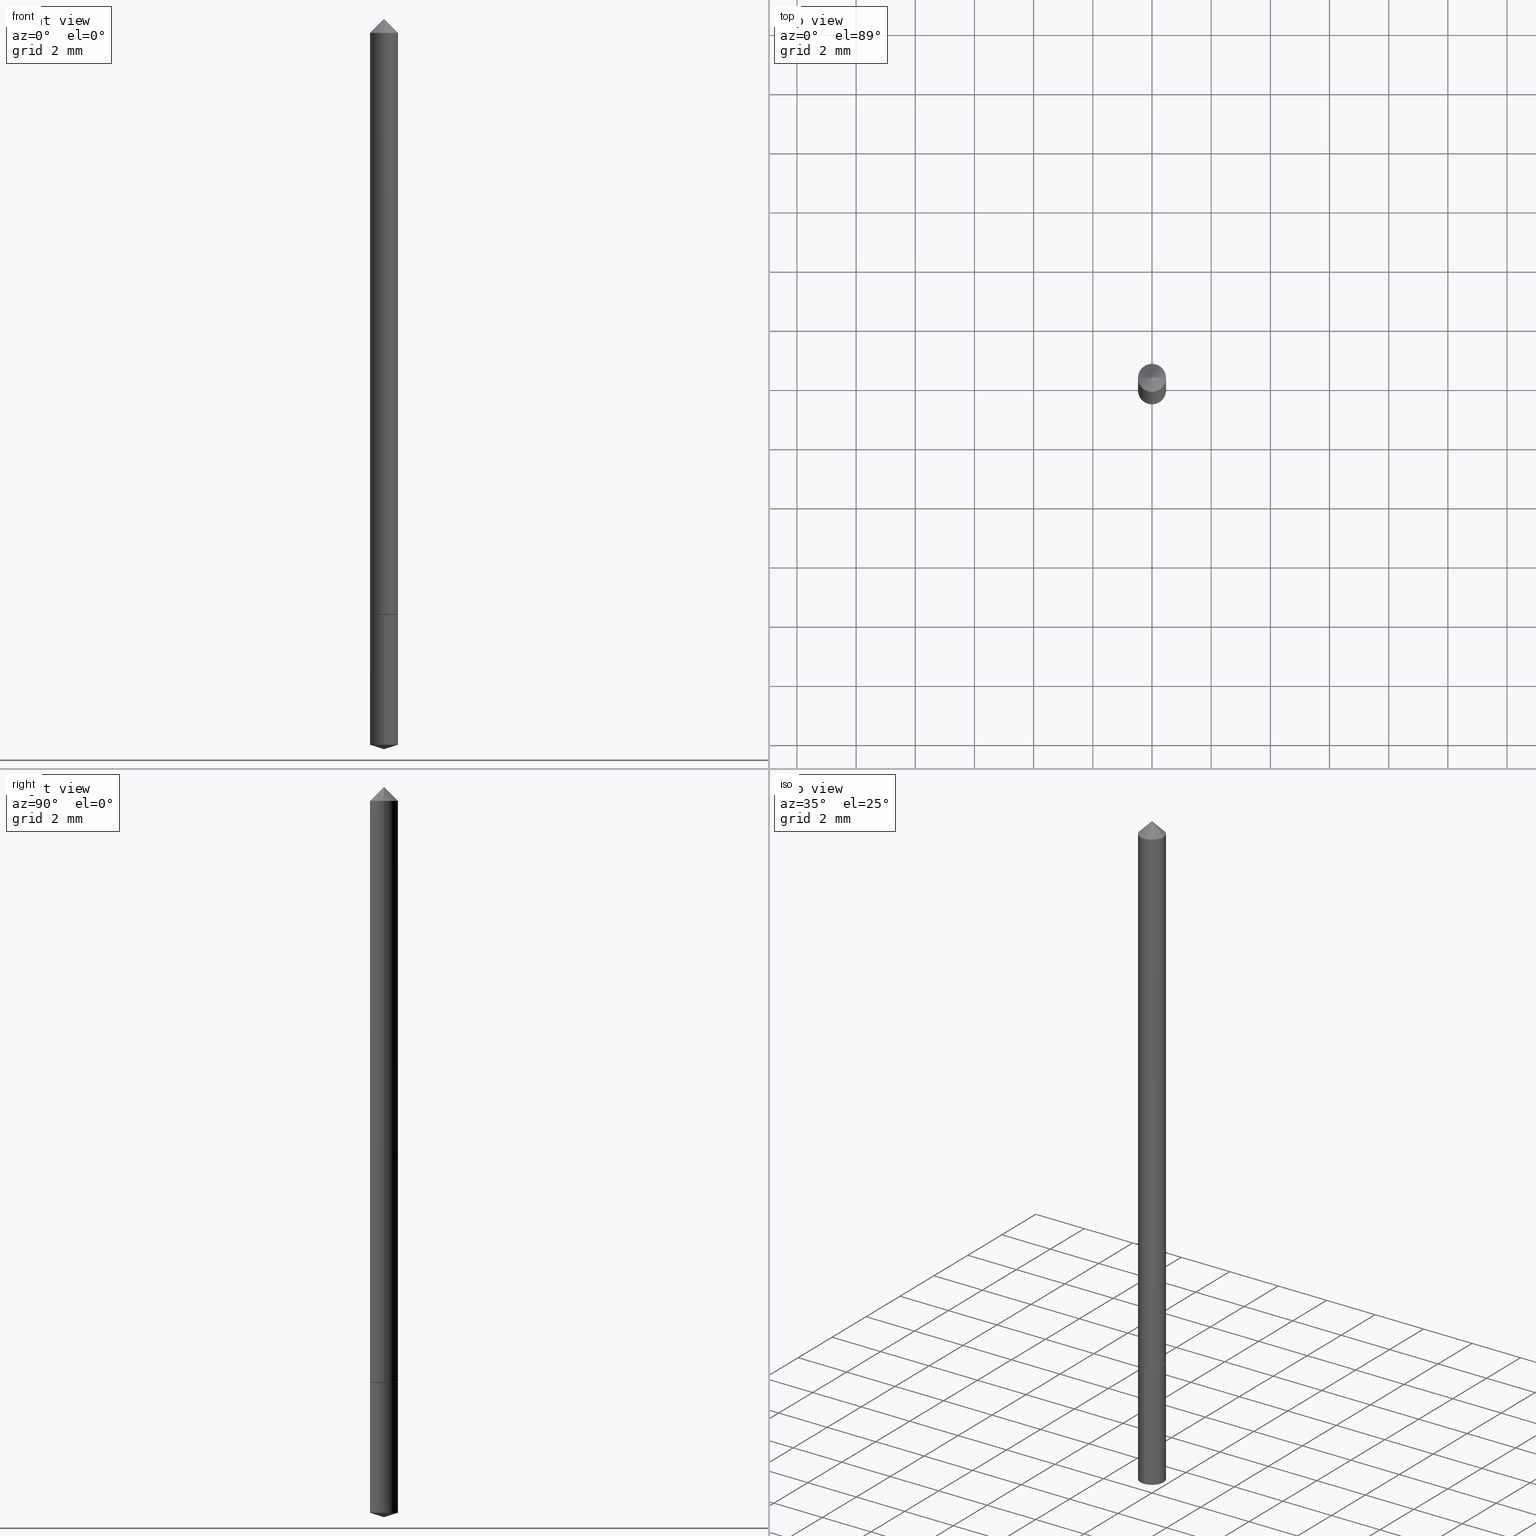
[diagram: canonical four-view strip — front | top / right | iso, engineering-drawing reading convention]
A machine part, canonical four-view strip (front | top / right | iso — engineering-drawing reading convention). The complete STEP part file that produces these views, byte-faithful:
ISO-10303-21;
HEADER;
FILE_DESCRIPTION (( 'STEP AP203' ),
    '1' );
FILE_NAME ('68652.STEP',
    '2024-04-23T13:24:04',
    ( '' ),
    ( '' ),
    'SwSTEP 2.0',
    'SolidWorks 2023',
    '' );
FILE_SCHEMA (( 'CONFIG_CONTROL_DESIGN' ));
ENDSEC;

DATA;
#1 = SHAPE_DEFINITION_REPRESENTATION ( #58, #170 ) ;
#2 = APPROVAL_DATE_TIME ( #256, #321 ) ;
#3 =( GEOMETRIC_REPRESENTATION_CONTEXT ( 3 ) GLOBAL_UNCERTAINTY_ASSIGNED_CONTEXT ( ( #249 ) ) GLOBAL_UNIT_ASSIGNED_CONTEXT ( ( #341, #191, #346 ) ) REPRESENTATION_CONTEXT ( 'NONE', 'WORKASPACE' ) );
#4 = DATE_AND_TIME ( #265, #221 ) ;
#5 = DIRECTION ( 'NONE',  ( -6.982962677686265922E-15, -1.000000000000000000, 0.000000000000000000 ) ) ;
#6 = DIRECTION ( 'NONE',  ( 0.7071067811865453523, -7.319954787623248157E-15, -0.7071067811865496822 ) ) ;
#7 = ORIENTED_EDGE ( 'NONE', *, *, #229, .F. ) ;
#8 = CONICAL_SURFACE ( 'NONE', #204, 0.01870000000000009849, 0.7853981633972797471 ) ;
#9 = VERTEX_POINT ( 'NONE', #149 ) ;
#10 = PLANE ( 'NONE',  #97 ) ;
#11 = APPROVAL_STATUS ( 'not_yet_approved' ) ;
#12 = EDGE_LOOP ( 'NONE', ( #283, #273, #198, #108 ) ) ;
#13 = CARTESIAN_POINT ( 'NONE',  ( 0.000000000000000000, 0.000000000000000000, 0.000000000000000000 ) ) ;
#14 = ADVANCED_FACE ( 'NONE', ( #308 ), #147, .T. ) ;
#15 = CARTESIAN_POINT ( 'NONE',  ( -9.387324683485134732E-28, 1.340203340641884344E-13, 38.38577874015747682 ) ) ;
#16 = CLOSED_SHELL ( 'NONE', ( #120, #81, #14, #67, #45, #113, #26 ) ) ;
#17 = ORIENTED_EDGE ( 'NONE', *, *, #246, .F. ) ;
#18 = CYLINDRICAL_SURFACE ( 'NONE', #29, 0.01870000000000005339 ) ;
#19 = CC_DESIGN_DATE_AND_TIME_ASSIGNMENT ( #197, #278, ( #223 ) ) ;
#20 = VERTEX_POINT ( 'NONE', #288 ) ;
#21 = CARTESIAN_POINT ( 'NONE',  ( 0.01870000000000009849, -2.940176435439812668E-15, -0.8046999999999998598 ) ) ;
#22 = DIRECTION ( 'NONE',  ( 2.445468806185136597E-29, -3.491481338843145583E-15, -1.000000000000000000 ) ) ;
#23 = AXIS2_PLACEMENT_3D ( 'NONE', #130, #95, #213 ) ;
#24 = PERSON_AND_ORGANIZATION_ROLE ( 'creator' ) ;
#25 = ORIENTED_EDGE ( 'NONE', *, *, #74, .F. ) ;
#26 = ADVANCED_FACE ( 'NONE', ( #28 ), #177, .T. ) ;
#27 = PRODUCT ( '68652', '68652', '', ( #212 ) ) ;
#28 = FACE_OUTER_BOUND ( 'NONE', #218, .T. ) ;
#29 = AXIS2_PLACEMENT_3D ( 'NONE', #140, #136, #323 ) ;
#30 = CC_DESIGN_PERSON_AND_ORGANIZATION_ASSIGNMENT ( #200, #106, ( #223 ) ) ;
#31 = PERSON_AND_ORGANIZATION ( #347, #276 ) ;
#32 = CARTESIAN_POINT ( 'NONE',  ( 7.642090019328600035E-31, -1.091087918388489897E-16, -0.03125000000000020123 ) ) ;
#33 = APPROVAL_STATUS ( 'not_yet_approved' ) ;
#34 = CARTESIAN_POINT ( 'NONE',  ( 2.407126466255076408E-29, -3.436592345300626676E-15, -0.9842999999999999527 ) ) ;
#35 = LOCAL_TIME ( 9, 24, 4.000000000000000000, #141 ) ;
#36 = CARTESIAN_POINT ( 'NONE',  ( -0.01870000000000005339, 1.328714915871391141E-16, -9.198408618776699725E-31 ) ) ;
#37 = FACE_OUTER_BOUND ( 'NONE', #355, .T. ) ;
#38 = DIRECTION ( 'NONE',  ( -2.445520407975564975E-29, 3.491407442142260390E-15, 1.000000000000000000 ) ) ;
#39 = CC_DESIGN_APPROVAL ( #236, ( #223 ) ) ;
#40 = EDGE_CURVE ( 'NONE', #363, #313, #124, .T. ) ;
#41 = LINE ( 'NONE', #168, #232 ) ;
#42 = DIRECTION ( 'NONE',  ( 1.000000000000000000, -6.982962677686265133E-15, 0.000000000000000000 ) ) ;
#43 = ORIENTED_EDGE ( 'NONE', *, *, #90, .T. ) ;
#44 = DIRECTION ( 'NONE',  ( 2.445468806185136597E-29, -3.491481338843145583E-15, -1.000000000000000000 ) ) ;
#45 = ADVANCED_FACE ( 'NONE', ( #299 ), #8, .T. ) ;
#46 = CIRCLE ( 'NONE', #220, 0.01870000000000000134 ) ;
#47 = APPROVAL_ROLE ( '' ) ;
#48 = LOCAL_TIME ( 9, 24, 4.000000000000000000, #56 ) ;
#49 = ORIENTED_EDGE ( 'NONE', *, *, #125, .F. ) ;
#50 = DIRECTION ( 'NONE',  ( -6.982962677686265922E-15, -1.000000000000000000, 3.500519750498601486E-15 ) ) ;
#51 = ORIENTED_EDGE ( 'NONE', *, *, #55, .F. ) ;
#52 = DATE_AND_TIME ( #262, #64 ) ;
#53 = ORIENTED_EDGE ( 'NONE', *, *, #125, .T. ) ;
#54 = AXIS2_PLACEMENT_3D ( 'NONE', #258, #228, #176 ) ;
#55 = EDGE_CURVE ( 'NONE', #9, #363, #315, .T. ) ;
#56 = COORDINATED_UNIVERSAL_TIME_OFFSET ( 5, 0, .BEHIND. ) ;
#57 = VERTEX_POINT ( 'NONE', #127 ) ;
#58 = PRODUCT_DEFINITION_SHAPE ( 'NONE', 'NONE',  #223 ) ;
#59 = COORDINATED_UNIVERSAL_TIME_OFFSET ( 5, 0, .BEHIND. ) ;
#60 = DESIGN_CONTEXT ( 'detailed design', #342, 'design' ) ;
#61 = APPROVAL ( #115, 'UNSPECIFIED' ) ;
#62 = CIRCLE ( 'NONE', #364, 0.01870000000000000481 ) ;
#63 = DIRECTION ( 'NONE',  ( 1.000000000000000000, -6.982962677686264344E-15, 0.000000000000000000 ) ) ;
#64 = LOCAL_TIME ( 9, 24, 4.000000000000000000, #59 ) ;
#65 = PERSON_AND_ORGANIZATION ( #347, #276 ) ;
#66 = DIRECTION ( 'NONE',  ( -6.982962677686265922E-15, -1.000000000000000000, 0.000000000000000000 ) ) ;
#67 = ADVANCED_FACE ( 'NONE', ( #37 ), #189, .F. ) ;
#68 = AXIS2_PLACEMENT_3D ( 'NONE', #192, #242, #63 ) ;
#69 = CIRCLE ( 'NONE', #23, 0.01870000000000009849 ) ;
#70 = CARTESIAN_POINT ( 'NONE',  ( 1.328714915871626320E-16, 0.01869999999999657700, -0.9784039126479632253 ) ) ;
#71 = DIRECTION ( 'NONE',  ( -1.000000000000000000, 6.982962677686266711E-15, 0.000000000000000000 ) ) ;
#72 = LINE ( 'NONE', #193, #343 ) ;
#73 = DIRECTION ( 'NONE',  ( -2.445520407975564975E-29, 3.491407442142260390E-15, 1.000000000000000000 ) ) ;
#74 = EDGE_CURVE ( 'NONE', #20, #251, #210, .T. ) ;
#75 = CARTESIAN_POINT ( 'NONE',  ( 0.000000000000000000, 0.000000000000000000, 0.000000000000000000 ) ) ;
#76 = DIRECTION ( 'NONE',  ( -6.982962677686265922E-15, -1.000000000000000000, 0.000000000000000000 ) ) ;
#77 = AXIS2_PLACEMENT_3D ( 'NONE', #202, #73, #248 ) ;
#78 = ORIENTED_EDGE ( 'NONE', *, *, #101, .T. ) ;
#79 = LINE ( 'NONE', #354, #183 ) ;
#80 = ADVANCED_FACE ( 'NONE', ( #82 ), #84, .T. ) ;
#81 = ADVANCED_FACE ( 'NONE', ( #250 ), #217, .T. ) ;
#82 = FACE_OUTER_BOUND ( 'NONE', #167, .T. ) ;
#83 = DIRECTION ( 'NONE',  ( 1.000000000000000000, -6.982962677686264344E-15, 0.000000000000000000 ) ) ;
#84 = CONICAL_SURFACE ( 'NONE', #337, 124.8659371009187424, 1.265363707695900120 ) ;
#85 = ORIENTED_EDGE ( 'NONE', *, *, #117, .T. ) ;
#86 = ORIENTED_EDGE ( 'NONE', *, *, #190, .T. ) ;
#87 = EDGE_LOOP ( 'NONE', ( #225, #338, #207 ) ) ;
#88 = VERTEX_POINT ( 'NONE', #174 ) ;
#89 = ORIENTED_EDGE ( 'NONE', *, *, #74, .T. ) ;
#90 = EDGE_CURVE ( 'NONE', #363, #88, #79, .T. ) ;
#91 = CARTESIAN_POINT ( 'NONE',  ( 2.392665185862083405E-29, -3.416066203663757391E-15, -0.9784039126479632253 ) ) ;
#92 = AXIS2_PLACEMENT_3D ( 'NONE', #310, #22, #71 ) ;
#93 = APPLICATION_PROTOCOL_DEFINITION ( 'international standard', 'config_control_design', 1994, #359 ) ;
#94 = DIMENSIONAL_EXPONENTS ( 1.000000000000000000, 0.000000000000000000, 0.000000000000000000, 0.000000000000000000, 0.000000000000000000, 0.000000000000000000, 0.000000000000000000 ) ;
#95 = DIRECTION ( 'NONE',  ( -2.445468806185136597E-29, 3.491481338843145583E-15, 1.000000000000000000 ) ) ;
#96 = LENGTH_MEASURE_WITH_UNIT ( LENGTH_MEASURE( 0.02539999999999999897 ), #157 );
#97 = AXIS2_PLACEMENT_3D ( 'NONE', #134, #199, #245 ) ;
#98 = CC_DESIGN_APPROVAL ( #61, ( #254 ) ) ;
#99 = DIRECTION ( 'NONE',  ( 1.000000000000000000, -6.982962677686266711E-15, 0.000000000000000000 ) ) ;
#100 = CARTESIAN_POINT ( 'NONE',  ( 1.969091482740271834E-29, -2.811340774036500182E-15, -0.8051999999999999158 ) ) ;
#101 = EDGE_CURVE ( 'NONE', #306, #206, #222, .T. ) ;
#102 = CYLINDRICAL_SURFACE ( 'NONE', #132, 0.01870000000000000134 ) ;
#103 = CARTESIAN_POINT ( 'NONE',  ( 1.969091482740271834E-29, -2.811340774036500182E-15, -0.8051999999999999158 ) ) ;
#104 = CARTESIAN_POINT ( 'NONE',  ( -0.01870000000000000481, -1.326480421015823222E-15, -0.03125000000000020123 ) ) ;
#105 = AXIS2_PLACEMENT_3D ( 'NONE', #100, #195, #83 ) ;
#106 = PERSON_AND_ORGANIZATION_ROLE ( 'creator' ) ;
#107 = DIRECTION ( 'NONE',  ( -0.7071067811865453523, 2.468850131082234184E-15, -0.7071067811865496822 ) ) ;
#108 = ORIENTED_EDGE ( 'NONE', *, *, #117, .F. ) ;
#109 = CARTESIAN_POINT ( 'NONE',  ( 7.642090019328600035E-31, -1.091087918388489897E-16, -0.03125000000000020123 ) ) ;
#110 = EDGE_LOOP ( 'NONE', ( #53, #233 ) ) ;
#111 = CONICAL_SURFACE ( 'NONE', #155, 0.01870000000000000481, 0.7853981633974452814 ) ;
#112 = ORIENTED_EDGE ( 'NONE', *, *, #309, .F. ) ;
#113 = ADVANCED_FACE ( 'NONE', ( #349 ), #18, .T. ) ;
#114 = ORIENTED_EDGE ( 'NONE', *, *, #246, .T. ) ;
#115 = APPROVAL_STATUS ( 'not_yet_approved' ) ;
#116 = VERTEX_POINT ( 'NONE', #21 ) ;
#117 = EDGE_CURVE ( 'NONE', #206, #267, #188, .T. ) ;
#118 = DIRECTION ( 'NONE',  ( -2.445520407975564975E-29, 3.491407442142260390E-15, 1.000000000000000000 ) ) ;
#119 = PERSON_AND_ORGANIZATION ( #347, #276 ) ;
#120 = ADVANCED_FACE ( 'NONE', ( #350 ), #111, .T. ) ;
#121 = PERSON_AND_ORGANIZATION ( #347, #276 ) ;
#122 = LINE ( 'NONE', #235, #173 ) ;
#123 = CARTESIAN_POINT ( 'NONE',  ( 0.01870000000000000481, -2.374001043971766580E-16, -0.03125000000000020123 ) ) ;
#124 = CIRCLE ( 'NONE', #165, 0.01870000000000000134 ) ;
#125 = EDGE_CURVE ( 'NONE', #335, #88, #46, .T. ) ;
#126 = APPROVAL_DATE_TIME ( #4, #236 ) ;
#127 = CARTESIAN_POINT ( 'NONE',  ( -0.01870000000000009849, -2.676723541779939195E-15, -0.8046999999999998598 ) ) ;
#128 = APPLICATION_PROTOCOL_DEFINITION ( 'international standard', 'config_control_design', 1994, #342 ) ;
#129 = DIRECTION ( 'NONE',  ( -2.438088387897960049E-29, 3.491481338843145188E-15, 1.000000000000000000 ) ) ;
#130 = CARTESIAN_POINT ( 'NONE',  ( 1.967868748337179033E-29, -2.809595033367079073E-15, -0.8046999999999998598 ) ) ;
#131 = DIRECTION ( 'NONE',  ( -2.445520407975564975E-29, 3.491407442142260390E-15, 1.000000000000000000 ) ) ;
#132 = AXIS2_PLACEMENT_3D ( 'NONE', #162, #133, #66 ) ;
#133 = DIRECTION ( 'NONE',  ( -2.445520407975564975E-29, 3.491407442142260390E-15, 1.000000000000000000 ) ) ;
#134 = CARTESIAN_POINT ( 'NONE',  ( 1.969091482740271834E-29, -2.811340774036500182E-15, -0.8051999999999999158 ) ) ;
#135 = CARTESIAN_POINT ( 'NONE',  ( 1.967868748337179033E-29, -2.809595033367079073E-15, -0.8046999999999998598 ) ) ;
#136 = DIRECTION ( 'NONE',  ( -2.445468806185136597E-29, 3.491481338843145583E-15, 1.000000000000000000 ) ) ;
#137 = VECTOR ( 'NONE', #209, 39.37007874015748854 ) ;
#138 = EDGE_CURVE ( 'NONE', #251, #20, #253, .T. ) ;
#139 = EDGE_LOOP ( 'NONE', ( #304, #43, #49, #17 ) ) ;
#140 = CARTESIAN_POINT ( 'NONE',  ( 0.000000000000000000, 0.000000000000000000, 0.000000000000000000 ) ) ;
#141 = COORDINATED_UNIVERSAL_TIME_OFFSET ( 5, 0, .BEHIND. ) ;
#142 = ORIENTED_EDGE ( 'NONE', *, *, #309, .T. ) ;
#143 = DIRECTION ( 'NONE',  ( -1.000000000000000000, 6.982962677686266711E-15, 0.000000000000000000 ) ) ;
#144 = CALENDAR_DATE ( 2024, 23, 4 ) ;
#145 = ORIENTED_EDGE ( 'NONE', *, *, #184, .F. ) ;
#146 = EDGE_CURVE ( 'NONE', #313, #363, #226, .T. ) ;
#147 = CONICAL_SURFACE ( 'NONE', #54, 0.01870000000000009849, 0.7853981633972797471 ) ;
#148 = AXIS2_PLACEMENT_3D ( 'NONE', #75, #239, #339 ) ;
#149 = CARTESIAN_POINT ( 'NONE',  ( 2.407125737570348371E-29, -3.436592345300626676E-15, -0.9842999999999999527 ) ) ;
#150 = PERSON_AND_ORGANIZATION_ROLE ( 'design_supplier' ) ;
#151 = ORIENTED_EDGE ( 'NONE', *, *, #277, .T. ) ;
#152 = ORIENTED_EDGE ( 'NONE', *, *, #290, .T. ) ;
#153 = ADVANCED_FACE ( 'NONE', ( #272 ), #301, .T. ) ;
#154 = CALENDAR_DATE ( 2024, 23, 4 ) ;
#155 = AXIS2_PLACEMENT_3D ( 'NONE', #109, #44, #143 ) ;
#156 = PERSON_AND_ORGANIZATION_ROLE ( 'classification_officer' ) ;
#157 =( LENGTH_UNIT ( ) NAMED_UNIT ( * ) SI_UNIT ( $, .METRE. ) );
#158 = COORDINATED_UNIVERSAL_TIME_OFFSET ( 5, 0, .BEHIND. ) ;
#159 = VECTOR ( 'NONE', #6, 39.37007874015748143 ) ;
#160 = DIRECTION ( 'NONE',  ( 1.000000000000000000, -6.982962677686265133E-15, 0.000000000000000000 ) ) ;
#161 = CC_DESIGN_PERSON_AND_ORGANIZATION_ASSIGNMENT ( #31, #24, ( #332 ) ) ;
#162 = CARTESIAN_POINT ( 'NONE',  ( 1.969091482740271834E-29, -2.811340774036500182E-15, -0.8051999999999999158 ) ) ;
#163 = DIRECTION ( 'NONE',  ( 1.000000000000000000, -6.982962677686265922E-15, 4.876176775795935793E-29 ) ) ;
#164 = DIRECTION ( 'NONE',  ( -2.445520407975564975E-29, 3.491407442142260390E-15, 1.000000000000000000 ) ) ;
#165 = AXIS2_PLACEMENT_3D ( 'NONE', #91, #131, #5 ) ;
#166 = APPROVAL_PERSON_ORGANIZATION ( #282, #61, #292 ) ;
#167 = EDGE_LOOP ( 'NONE', ( #51, #356, #358 ) ) ;
#168 = CARTESIAN_POINT ( 'NONE',  ( 0.01870000000000009849, -2.940176435439812668E-15, -0.8046999999999998598 ) ) ;
#169 = CARTESIAN_POINT ( 'NONE',  ( -0.01870000000000000481, 2.147261023388422272E-17, -0.03125000000000020123 ) ) ;
#170 = ADVANCED_BREP_SHAPE_REPRESENTATION ( '68652', ( #348, #234, #148 ), #3 ) ;
#171 = ADVANCED_FACE ( 'NONE', ( #247 ), #316, .T. ) ;
#172 = DIRECTION ( 'NONE',  ( -2.445468806185136597E-29, 3.491481338843145583E-15, 1.000000000000000000 ) ) ;
#173 = VECTOR ( 'NONE', #118, 39.37007874015748143 ) ;
#174 = CARTESIAN_POINT ( 'NONE',  ( 1.328714915871626813E-16, 0.01869999999999719109, -0.8051999999999999158 ) ) ;
#175 = COORDINATED_UNIVERSAL_TIME_OFFSET ( 5, 0, .BEHIND. ) ;
#176 = DIRECTION ( 'NONE',  ( 1.000000000000000000, -6.982962677686265133E-15, 0.000000000000000000 ) ) ;
#177 = CONICAL_SURFACE ( 'NONE', #92, 0.01870000000000000481, 0.7853981633974452814 ) ;
#178 = APPROVAL_PERSON_ORGANIZATION ( #294, #236, #241 ) ;
#179 = ORIENTED_EDGE ( 'NONE', *, *, #190, .F. ) ;
#180 = ORIENTED_EDGE ( 'NONE', *, *, #291, .F. ) ;
#181 = ADVANCED_FACE ( 'NONE', ( #269 ), #10, .F. ) ;
#182 = LINE ( 'NONE', #36, #238 ) ;
#183 = VECTOR ( 'NONE', #279, 39.37007874015748143 ) ;
#184 = EDGE_CURVE ( 'NONE', #88, #335, #275, .T. ) ;
#185 = CARTESIAN_POINT ( 'NONE',  ( -0.01870000000000009849, -2.676723541779939195E-15, -0.8046999999999998598 ) ) ;
#186 = PERSON_AND_ORGANIZATION_ROLE ( 'design_owner' ) ;
#187 = DIRECTION ( 'NONE',  ( -2.445468806185136597E-29, 3.491481338843145583E-15, 1.000000000000000000 ) ) ;
#188 = CIRCLE ( 'NONE', #259, 0.01870000000000000481 ) ;
#189 = PLANE ( 'NONE',  #326 ) ;
#190 = EDGE_CURVE ( 'NONE', #251, #116, #41, .T. ) ;
#191 =( NAMED_UNIT ( * ) PLANE_ANGLE_UNIT ( ) SI_UNIT ( $, .RADIAN. ) );
#192 = CARTESIAN_POINT ( 'NONE',  ( 1.969091482740271834E-29, -2.811340774036500182E-15, -0.8051999999999999158 ) ) ;
#193 = CARTESIAN_POINT ( 'NONE',  ( 2.407042638047042269E-29, -3.436711348547731864E-15, -0.9842999999999999527 ) ) ;
#194 = DIRECTION ( 'NONE',  ( -6.659769872151647866E-15, -0.9537169507482290420, 0.3007057995042657361 ) ) ;
#195 = DIRECTION ( 'NONE',  ( -2.445468806185136597E-29, 3.491481338843145583E-15, 1.000000000000000000 ) ) ;
#196 = AXIS2_PLACEMENT_3D ( 'NONE', #135, #303, #42 ) ;
#197 = DATE_AND_TIME ( #144, #286 ) ;
#198 = ORIENTED_EDGE ( 'NONE', *, *, #317, .T. ) ;
#199 = DIRECTION ( 'NONE',  ( 2.445520407975564695E-29, -3.491407442142260390E-15, -1.000000000000000000 ) ) ;
#200 = PERSON_AND_ORGANIZATION ( #347, #276 ) ;
#201 = CARTESIAN_POINT ( 'NONE',  ( 7.642090019328600035E-31, -1.091087918388489897E-16, -0.03125000000000020123 ) ) ;
#202 = CARTESIAN_POINT ( 'NONE',  ( 2.392665185862083405E-29, -3.416066203663757391E-15, -0.9784039126479632253 ) ) ;
#203 = CC_DESIGN_PERSON_AND_ORGANIZATION_ASSIGNMENT ( #119, #156, ( #254 ) ) ;
#204 = AXIS2_PLACEMENT_3D ( 'NONE', #318, #187, #160 ) ;
#205 = ORIENTED_EDGE ( 'NONE', *, *, #138, .T. ) ;
#206 = VERTEX_POINT ( 'NONE', #104 ) ;
#207 = ORIENTED_EDGE ( 'NONE', *, *, #146, .F. ) ;
#208 = EDGE_LOOP ( 'NONE', ( #330, #281, #114, #145 ) ) ;
#209 = DIRECTION ( 'NONE',  ( 6.776566513254275492E-15, 0.9537169507482312625, 0.3007057995042591303 ) ) ;
#210 = CIRCLE ( 'NONE', #68, 0.01820000000000023335 ) ;
#211 = LINE ( 'NONE', #185, #320 ) ;
#212 = MECHANICAL_CONTEXT ( 'NONE', #359, 'mechanical' ) ;
#213 = DIRECTION ( 'NONE',  ( 1.000000000000000000, -6.982962677686265133E-15, 0.000000000000000000 ) ) ;
#214 = CIRCLE ( 'NONE', #196, 0.01870000000000009849 ) ;
#215 = CARTESIAN_POINT ( 'NONE',  ( 0.01870000000000005339, -1.305814020727335452E-16, 9.118450570738424932E-31 ) ) ;
#216 = ORIENTED_EDGE ( 'NONE', *, *, #138, .F. ) ;
#217 = CYLINDRICAL_SURFACE ( 'NONE', #285, 0.01870000000000005339 ) ;
#218 = EDGE_LOOP ( 'NONE', ( #180, #78, #85 ) ) ;
#219 = CARTESIAN_POINT ( 'NONE',  ( 1.969091482740271834E-29, -2.811340774036500182E-15, -0.8051999999999999158 ) ) ;
#220 = AXIS2_PLACEMENT_3D ( 'NONE', #345, #224, #329 ) ;
#221 = LOCAL_TIME ( 9, 24, 4.000000000000000000, #158 ) ;
#222 = LINE ( 'NONE', #169, #244 ) ;
#223 = PRODUCT_DEFINITION ( 'UNKNOWN', '', #332, #60 ) ;
#224 = DIRECTION ( 'NONE',  ( -2.445520407975564975E-29, 3.491407442142260390E-15, 1.000000000000000000 ) ) ;
#225 = ORIENTED_EDGE ( 'NONE', *, *, #351, .F. ) ;
#226 = CIRCLE ( 'NONE', #77, 0.01870000000000000134 ) ;
#227 = EDGE_LOOP ( 'NONE', ( #257, #89, #86, #7 ) ) ;
#228 = DIRECTION ( 'NONE',  ( -2.445468806185136597E-29, 3.491481338843145583E-15, 1.000000000000000000 ) ) ;
#229 = EDGE_CURVE ( 'NONE', #57, #116, #214, .T. ) ;
#230 = APPROVAL_DATE_TIME ( #52, #61 ) ;
#231 = ORIENTED_EDGE ( 'NONE', *, *, #291, .T. ) ;
#232 = VECTOR ( 'NONE', #271, 39.37007874015748143 ) ;
#233 = ORIENTED_EDGE ( 'NONE', *, *, #184, .T. ) ;
#234 = MANIFOLD_SOLID_BREP ( 'Body-Move/Copy2[2]', #16 ) ;
#235 = CARTESIAN_POINT ( 'NONE',  ( -1.305814020727134786E-16, -0.01870000000000281160, -0.8051999999999999158 ) ) ;
#236 = APPROVAL ( #33, 'UNSPECIFIED' ) ;
#237 = CC_DESIGN_DATE_AND_TIME_ASSIGNMENT ( #362, #255, ( #254 ) ) ;
#238 = VECTOR ( 'NONE', #319, 39.37007874015748143 ) ;
#239 = DIRECTION ( 'NONE',  ( 0.000000000000000000, 0.000000000000000000, 1.000000000000000000 ) ) ;
#240 = FACE_OUTER_BOUND ( 'NONE', #208, .T. ) ;
#241 = APPROVAL_ROLE ( '' ) ;
#242 = DIRECTION ( 'NONE',  ( -2.445468806185136597E-29, 3.491481338843145583E-15, 1.000000000000000000 ) ) ;
#243 = CARTESIAN_POINT ( 'NONE',  ( 3.031804772502854633E-31, -4.435165486374430204E-17, -0.01255000000000007845 ) ) ;
#244 = VECTOR ( 'NONE', #107, 39.37007874015748143 ) ;
#245 = DIRECTION ( 'NONE',  ( 6.982962677686265922E-15, 1.000000000000000000, -3.491407442142260390E-15 ) ) ;
#246 = EDGE_CURVE ( 'NONE', #313, #335, #122, .T. ) ;
#247 = FACE_OUTER_BOUND ( 'NONE', #87, .T. ) ;
#248 = DIRECTION ( 'NONE',  ( -6.982962677686265922E-15, -1.000000000000000000, 0.000000000000000000 ) ) ;
#249 = UNCERTAINTY_MEASURE_WITH_UNIT (LENGTH_MEASURE( 1.000000000000000082E-05 ), #341, 'distance_accuracy_value', 'NONE');
#250 = FACE_OUTER_BOUND ( 'NONE', #311, .T. ) ;
#251 = VERTEX_POINT ( 'NONE', #314 ) ;
#252 = EDGE_LOOP ( 'NONE', ( #336, #231, #142 ) ) ;
#253 = CIRCLE ( 'NONE', #105, 0.01820000000000023335 ) ;
#254 = SECURITY_CLASSIFICATION ( '', '', #360 ) ;
#255 = DATE_TIME_ROLE ( 'classification_date' ) ;
#256 = DATE_AND_TIME ( #280, #35 ) ;
#257 = ORIENTED_EDGE ( 'NONE', *, *, #277, .F. ) ;
#258 = CARTESIAN_POINT ( 'NONE',  ( 1.967868748337179033E-29, -2.809595033367079073E-15, -0.8046999999999998598 ) ) ;
#259 = AXIS2_PLACEMENT_3D ( 'NONE', #201, #305, #307 ) ;
#260 = APPROVAL_PERSON_ORGANIZATION ( #270, #321, #47 ) ;
#261 = CC_DESIGN_PERSON_AND_ORGANIZATION_ASSIGNMENT ( #121, #150, ( #332 ) ) ;
#262 = CALENDAR_DATE ( 2024, 23, 4 ) ;
#263 = AXIS2_PLACEMENT_3D ( 'NONE', #327, #164, #352 ) ;
#264 = CC_DESIGN_SECURITY_CLASSIFICATION ( #254, ( #332 ) ) ;
#265 = CALENDAR_DATE ( 2024, 23, 4 ) ;
#266 = LINE ( 'NONE', #215, #268 ) ;
#267 = VERTEX_POINT ( 'NONE', #293 ) ;
#268 = VECTOR ( 'NONE', #300, 39.37007874015748143 ) ;
#269 = FACE_OUTER_BOUND ( 'NONE', #110, .T. ) ;
#270 = PERSON_AND_ORGANIZATION ( #347, #276 ) ;
#271 = DIRECTION ( 'NONE',  ( 0.7071067811864283348, -2.468850131081008294E-15, 0.7071067811866666997 ) ) ;
#272 = FACE_OUTER_BOUND ( 'NONE', #139, .T. ) ;
#273 = ORIENTED_EDGE ( 'NONE', *, *, #229, .T. ) ;
#274 = DIRECTION ( 'NONE',  ( 1.000000000000000000, -6.982962677686265922E-15, 4.876176775795935232E-29 ) ) ;
#275 = CIRCLE ( 'NONE', #312, 0.01870000000000000134 ) ;
#276 = ORGANIZATION ( 'UNSPECIFIED', 'UNSPECIFIED', '' ) ;
#277 = EDGE_CURVE ( 'NONE', #20, #57, #211, .T. ) ;
#278 = DATE_TIME_ROLE ( 'creation_date' ) ;
#279 = DIRECTION ( 'NONE',  ( -2.445520407975564975E-29, 3.491407442142260390E-15, 1.000000000000000000 ) ) ;
#280 = CALENDAR_DATE ( 2024, 23, 4 ) ;
#281 = ORIENTED_EDGE ( 'NONE', *, *, #40, .T. ) ;
#282 = PERSON_AND_ORGANIZATION ( #347, #276 ) ;
#283 = ORIENTED_EDGE ( 'NONE', *, *, #284, .F. ) ;
#284 = EDGE_CURVE ( 'NONE', #57, #206, #182, .T. ) ;
#285 = AXIS2_PLACEMENT_3D ( 'NONE', #13, #172, #274 ) ;
#286 = LOCAL_TIME ( 9, 24, 4.000000000000000000, #175 ) ;
#287 = EDGE_LOOP ( 'NONE', ( #205, #151, #334, #179 ) ) ;
#288 = CARTESIAN_POINT ( 'NONE',  ( -0.01820000000000023335, -2.679372768954050396E-15, -0.8051999999999999158 ) ) ;
#289 = DIRECTION ( 'NONE',  ( -0.7071067811864283348, 7.493145998869923442E-15, 0.7071067811866666997 ) ) ;
#290 = EDGE_CURVE ( 'NONE', #116, #57, #69, .T. ) ;
#291 = EDGE_CURVE ( 'NONE', #306, #267, #340, .T. ) ;
#292 = APPROVAL_ROLE ( '' ) ;
#293 = CARTESIAN_POINT ( 'NONE',  ( 0.01870000000000000481, -2.396901939115822021E-16, -0.03125000000000020123 ) ) ;
#294 = PERSON_AND_ORGANIZATION ( #347, #276 ) ;
#295 = ADVANCED_FACE ( 'NONE', ( #240 ), #102, .T. ) ;
#296 = CC_DESIGN_APPROVAL ( #321, ( #332 ) ) ;
#297 = CARTESIAN_POINT ( 'NONE',  ( 1.969091482740271834E-29, -2.811340774036500182E-15, -0.8051999999999999158 ) ) ;
#298 = CARTESIAN_POINT ( 'NONE',  ( -1.305814020727134786E-16, -0.01870000000000281160, -0.8051999999999999158 ) ) ;
#299 = FACE_OUTER_BOUND ( 'NONE', #227, .T. ) ;
#300 = DIRECTION ( 'NONE',  ( -2.445468806185136877E-29, 3.491481338843145188E-15, 1.000000000000000000 ) ) ;
#301 = CYLINDRICAL_SURFACE ( 'NONE', #331, 0.01870000000000000134 ) ;
#302 = DIRECTION ( 'NONE',  ( -6.982962677686265922E-15, -1.000000000000000000, 0.000000000000000000 ) ) ;
#303 = DIRECTION ( 'NONE',  ( -2.445468806185136597E-29, 3.491481338843145583E-15, 1.000000000000000000 ) ) ;
#304 = ORIENTED_EDGE ( 'NONE', *, *, #146, .T. ) ;
#305 = DIRECTION ( 'NONE',  ( -2.445468806185136597E-29, 3.491481338843145583E-15, 1.000000000000000000 ) ) ;
#306 = VERTEX_POINT ( 'NONE', #243 ) ;
#307 = DIRECTION ( 'NONE',  ( 1.000000000000000000, -6.982962677686266711E-15, 0.000000000000000000 ) ) ;
#308 = FACE_OUTER_BOUND ( 'NONE', #287, .T. ) ;
#309 = EDGE_CURVE ( 'NONE', #267, #206, #62, .T. ) ;
#310 = CARTESIAN_POINT ( 'NONE',  ( 7.642090019328600035E-31, -1.091087918388489897E-16, -0.03125000000000020123 ) ) ;
#311 = EDGE_LOOP ( 'NONE', ( #152, #353, #112, #361 ) ) ;
#312 = AXIS2_PLACEMENT_3D ( 'NONE', #103, #324, #76 ) ;
#313 = VERTEX_POINT ( 'NONE', #322 ) ;
#314 = CARTESIAN_POINT ( 'NONE',  ( 0.01820000000000023335, -2.938430694770391953E-15, -0.8051999999999999158 ) ) ;
#315 = LINE ( 'NONE', #34, #137 ) ;
#316 = CONICAL_SURFACE ( 'NONE', #263, 124.8659371009187424, 1.265363707695900120 ) ;
#317 = EDGE_CURVE ( 'NONE', #116, #267, #266, .T. ) ;
#318 = CARTESIAN_POINT ( 'NONE',  ( 1.967868748337179033E-29, -2.809595033367079073E-15, -0.8046999999999998598 ) ) ;
#319 = DIRECTION ( 'NONE',  ( -2.445468806185136877E-29, 3.491481338843145188E-15, 1.000000000000000000 ) ) ;
#320 = VECTOR ( 'NONE', #289, 39.37007874015748143 ) ;
#321 = APPROVAL ( #11, 'UNSPECIFIED' ) ;
#322 = CARTESIAN_POINT ( 'NONE',  ( -1.305814020727091892E-16, -0.01870000000000341528, -0.9784039126479632253 ) ) ;
#323 = DIRECTION ( 'NONE',  ( 1.000000000000000000, -6.982962677686265922E-15, 4.876176775795935232E-29 ) ) ;
#324 = DIRECTION ( 'NONE',  ( -2.445520407975564975E-29, 3.491407442142260390E-15, 1.000000000000000000 ) ) ;
#325 = CC_DESIGN_PERSON_AND_ORGANIZATION_ASSIGNMENT ( #65, #186, ( #27 ) ) ;
#326 = AXIS2_PLACEMENT_3D ( 'NONE', #297, #129, #163 ) ;
#327 = CARTESIAN_POINT ( 'NONE',  ( -9.387324683485134732E-28, 1.340203340641884344E-13, 38.38577874015747682 ) ) ;
#328 = DIRECTION ( 'NONE',  ( -2.445520407975564975E-29, 3.491407442142260390E-15, 1.000000000000000000 ) ) ;
#329 = DIRECTION ( 'NONE',  ( -6.982962677686265922E-15, -1.000000000000000000, 0.000000000000000000 ) ) ;
#330 = ORIENTED_EDGE ( 'NONE', *, *, #90, .F. ) ;
#331 = AXIS2_PLACEMENT_3D ( 'NONE', #219, #38, #302 ) ;
#332 = PRODUCT_DEFINITION_FORMATION_WITH_SPECIFIED_SOURCE ( 'ANY', '', #27, .NOT_KNOWN. ) ;
#333 = PRODUCT_RELATED_PRODUCT_CATEGORY ( 'detail', '', ( #27 ) ) ;
#334 = ORIENTED_EDGE ( 'NONE', *, *, #290, .F. ) ;
#335 = VERTEX_POINT ( 'NONE', #298 ) ;
#336 = ORIENTED_EDGE ( 'NONE', *, *, #101, .F. ) ;
#337 = AXIS2_PLACEMENT_3D ( 'NONE', #15, #328, #50 ) ;
#338 = ORIENTED_EDGE ( 'NONE', *, *, #55, .T. ) ;
#339 = DIRECTION ( 'NONE',  ( 1.000000000000000000, 0.000000000000000000, 0.000000000000000000 ) ) ;
#340 = LINE ( 'NONE', #123, #159 ) ;
#341 =( CONVERSION_BASED_UNIT ( 'INCH', #96 ) LENGTH_UNIT ( ) NAMED_UNIT ( #94 ) );
#342 = APPLICATION_CONTEXT ( 'configuration controlled 3d designs of mechanical parts and assemblies' ) ;
#343 = VECTOR ( 'NONE', #194, 39.37007874015748854 ) ;
#344 = DIRECTION ( 'NONE',  ( -2.445468806185136597E-29, 3.491481338843145583E-15, 1.000000000000000000 ) ) ;
#345 = CARTESIAN_POINT ( 'NONE',  ( 1.969091482740271834E-29, -2.811340774036500182E-15, -0.8051999999999999158 ) ) ;
#346 =( NAMED_UNIT ( * ) SI_UNIT ( $, .STERADIAN. ) SOLID_ANGLE_UNIT ( ) );
#347 = PERSON ( 'UNSPECIFIED', 'UNSPECIFIED', 'UNSPECIFIED', ('UNSPECIFIED'), ('UNSPECIFIED'), ('UNSPECIFIED') ) ;
#348 = MANIFOLD_SOLID_BREP ( 'Body-Move/Copy2[1]', #357 ) ;
#349 = FACE_OUTER_BOUND ( 'NONE', #12, .T. ) ;
#350 = FACE_OUTER_BOUND ( 'NONE', #252, .T. ) ;
#351 = EDGE_CURVE ( 'NONE', #9, #313, #72, .T. ) ;
#352 = DIRECTION ( 'NONE',  ( -6.982962677686265922E-15, -1.000000000000000000, 3.500519750498601486E-15 ) ) ;
#353 = ORIENTED_EDGE ( 'NONE', *, *, #284, .T. ) ;
#354 = CARTESIAN_POINT ( 'NONE',  ( 1.328714915871584165E-16, 0.01869999999999719109, -0.8051999999999999158 ) ) ;
#355 = EDGE_LOOP ( 'NONE', ( #216, #25 ) ) ;
#356 = ORIENTED_EDGE ( 'NONE', *, *, #351, .T. ) ;
#357 = CLOSED_SHELL ( 'NONE', ( #153, #171, #80, #295, #181 ) ) ;
#358 = ORIENTED_EDGE ( 'NONE', *, *, #40, .F. ) ;
#359 = APPLICATION_CONTEXT ( 'configuration controlled 3d designs of mechanical parts and assemblies' ) ;
#360 = SECURITY_CLASSIFICATION_LEVEL ( 'unclassified' ) ;
#361 = ORIENTED_EDGE ( 'NONE', *, *, #317, .F. ) ;
#362 = DATE_AND_TIME ( #154, #48 ) ;
#363 = VERTEX_POINT ( 'NONE', #70 ) ;
#364 = AXIS2_PLACEMENT_3D ( 'NONE', #32, #344, #99 ) ;
ENDSEC;
END-ISO-10303-21;
